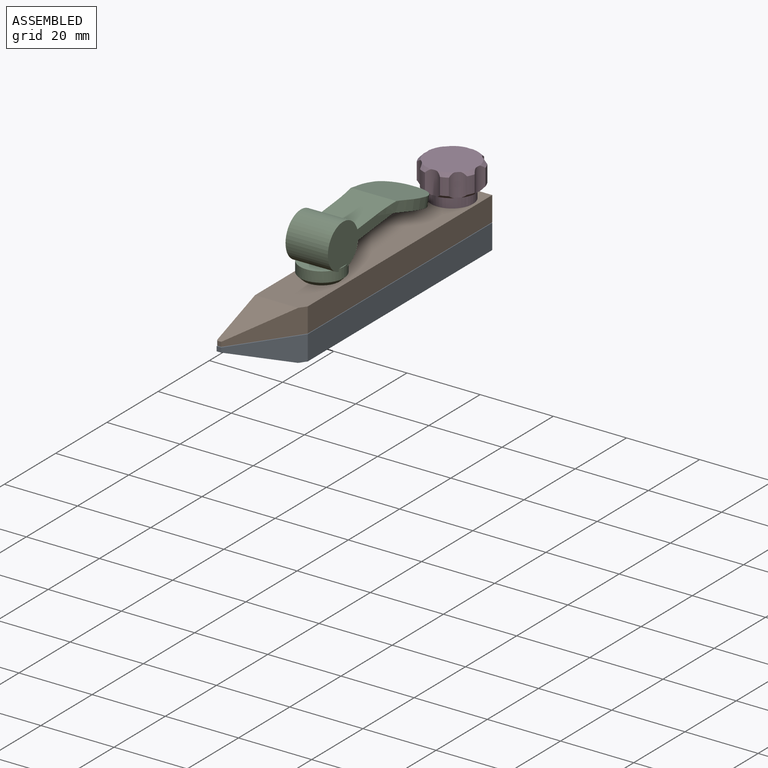
[diagram: assembled view]
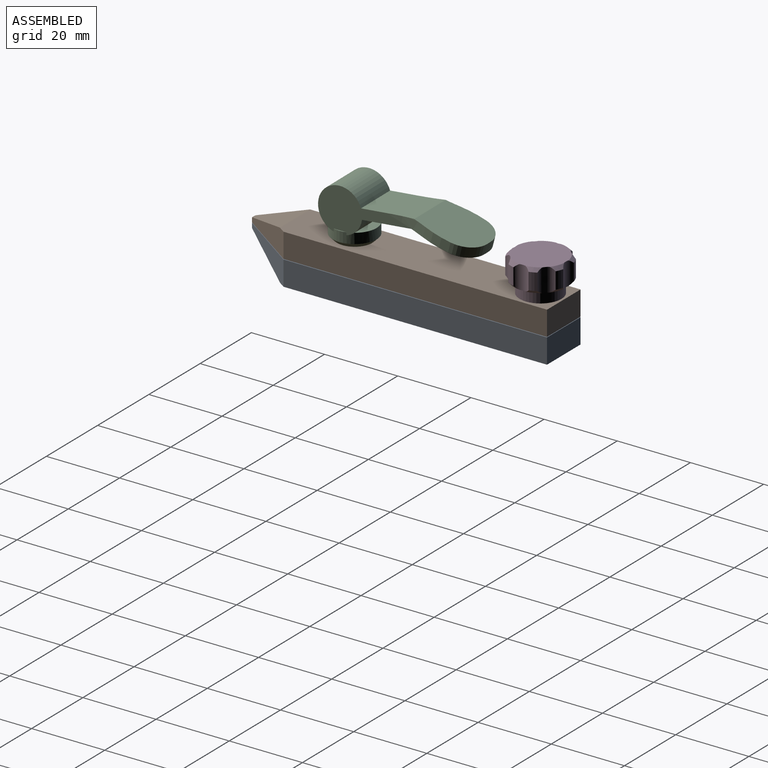
[diagram: assembled view, second angle]
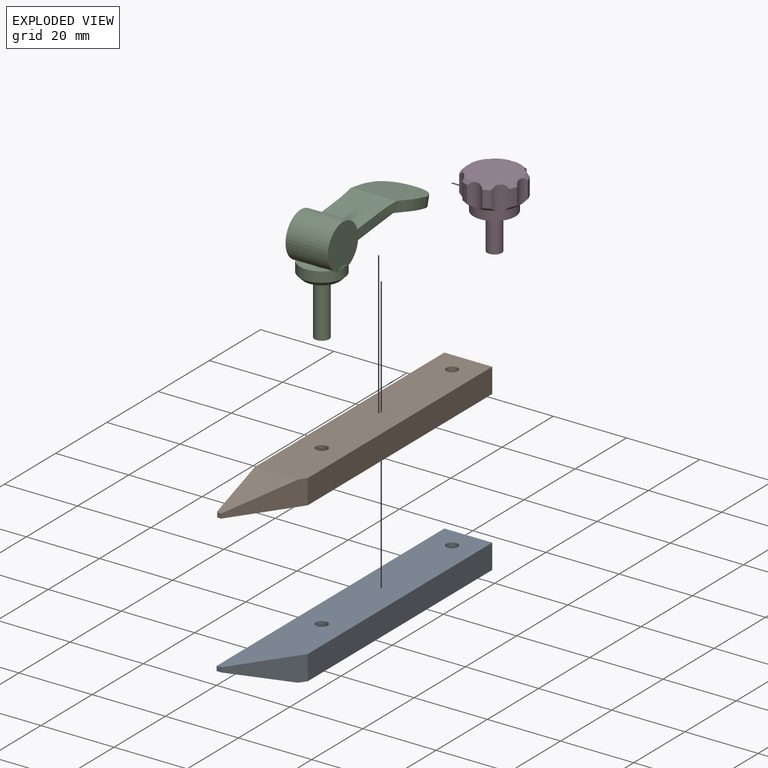
[diagram: exploded view]
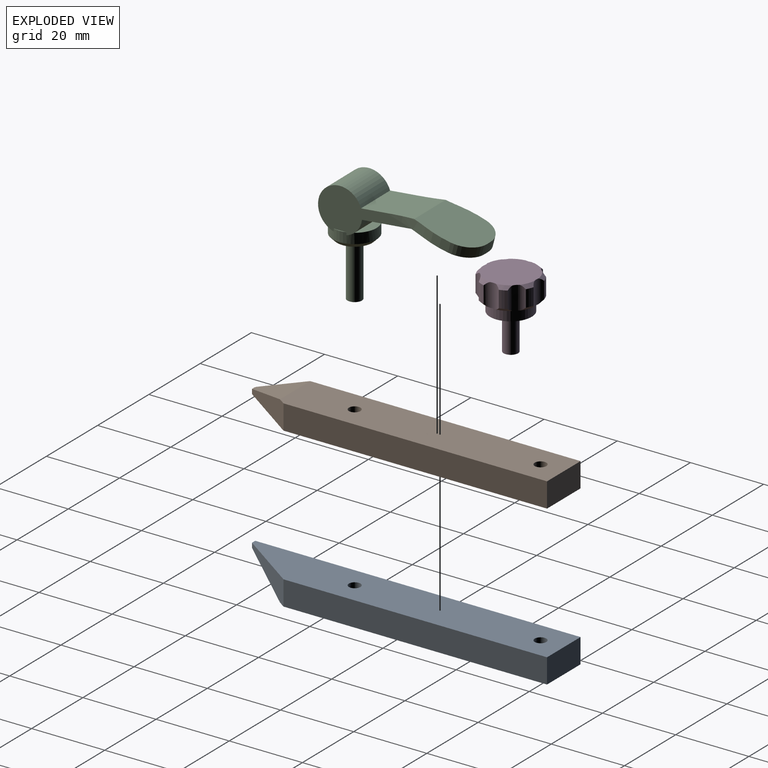
[diagram: exploded view, second angle]
ASSEMBLY  parts=4 mates=7
PART A: 10 faces, bbox 13.1x88.9x6.7 mm
  f0: plane 1.27x1.27mm, normal (0,-1,0), area 1.6mm2, adj f1,f3,f4,f9
  f1: plane 88.9x6.73mm, normal (-1,0,0), area 557.4mm2, adj f0,f2,f4,f6,f9
  f2: plane 73.9x13.09mm, normal (0,0,-1), area 950.5mm2, adj f1,f3,f5,f6,f7,f8,f9
  f3: plane 16.89x11.82mm, normal (0.82,-0.57,0), area 88.7mm2, adj f0,f2,f4,f5,f9
  f4: plane 88.9x13.09mm, normal (0,0,1), area 1048.4mm2, adj f0,f1,f3,f5,f6,f7,f8
  f5: plane 72.01x6.73mm, normal (1,0,0), area 484.7mm2, adj f2,f3,f4,f6
  f6: plane 13.09x6.73mm, normal (0,1,0), area 88.1mm2, adj f1,f2,f4,f5
  f7: cylinder r=1.59mm len=6.73mm, axis (0,0,1), area 67.1mm2, adj f2,f4
  f8: cylinder r=1.59mm len=6.73mm, axis (0,0,1), area 67.1mm2, adj f2,f4
  f9: plane 15x11.78mm, normal (0,-0.34,-0.94), area 104.2mm2, adj f0,f1,f2,f3
PART B: 11 faces, bbox 13.1x88.9x6.7 mm
  f0: plane 73.9x13.09mm, normal (0,0,1), area 950.5mm2, adj f1,f2,f5,f6,f7,f8,f9
  f1: plane 88.65x6.73mm, normal (-1,0,0), area 557.1mm2, adj f0,f4,f6,f9,f10
  f2: plane 16.89x11.82mm, normal (0.82,-0.57,0), area 88.7mm2, adj f0,f3,f4,f5,f9
  f3: plane 1.27x1.02mm, normal (0,-1,0), area 1.3mm2, adj f2,f4,f9,f10
  f4: plane 88.9x13.09mm, normal (0,0,-1), area 1048.3mm2, adj f1,f2,f3,f5,f6,f7,f8,f10
  f5: plane 72.01x6.73mm, normal (1,0,0), area 484.7mm2, adj f0,f2,f4,f6
  f6: plane 13.09x6.73mm, normal (0,1,0), area 88.1mm2, adj f0,f1,f4,f5
  f7: cylinder r=1.59mm len=6.73mm, axis (0,0,1), area 67.1mm2, adj f0,f4
  f8: cylinder r=1.59mm len=6.73mm, axis (0,0,1), area 67.1mm2, adj f0,f4
  f9: plane 15x11.78mm, normal (0,-0.34,0.94), area 104.1mm2, adj f0,f1,f2,f3,f10
  f10: plane 1.36x0.25mm, normal (-0.71,-0.71,0), area 0.5mm2, adj f1,f3,f4,f9
PART C: 24 faces, bbox 14.4x42.4x30 mm
  f0: plane 10x2.68mm, normal (0,0,1), area 18.9mm2, adj f3,f10
  f1: plane 10x2.68mm, normal (0,0,1), area 18.9mm2, adj f3,f9
  f2: plane 3.43x0.25mm, normal (0,0,1), area 0.6mm2, adj f3,f12
  f3: cylinder r=6mm len=12mm, axis (0,0,-1), area 103mm2, adj f0,f1,f2,f4,f8,f9,f10,f11
  f4: plane 3.43x0.25mm, normal (0,0,1), area 0.6mm2, adj f3,f11
  f5: plane 3.97x3.97mm, normal (0,0,-1), area 12.4mm2, adj f6
  f6: cylinder r=1.98mm len=15mm, axis (0,0,-1), area 187mm2, adj f5,f7
  f7: plane 9.62x9.62mm, normal (0,0,-1), area 60.3mm2, adj f6,f8
  f8: cone r=6mm half-angle=45deg, axis (0,0,1), area 57.2mm2, adj f3,f7
  f9: cylinder r=6mm len=11.5mm, axis (-1,0,0), area 59.7mm2, adj f1,f3,f11,f12,f13
  f10: cylinder r=6mm len=11.75mm, axis (-1,0,0), area 263.1mm2, adj f0,f3,f11,f12,f17
  f11: plane 26.22x11.75mm, normal (1,0,0), area 139.2mm2, adj f3,f4,f9,f10,f13,f14,f17,f23
  f12: plane 26.22x11.75mm, normal (-1,0,0), area 139.2mm2, adj f2,f3,f9,f10,f13,f14,f17,f22
  f13: plane 14.28x11.5mm, normal (0,0.1,-1), area 164.9mm2, adj f9,f11,f12,f14
  f14: plane 22.18x14.4mm, normal (0,-0.25,-0.97), area 207.8mm2, adj f11,f12,f13,f15,f18,f19,f20,f21
  f15: plane 2.69x1.5mm, normal (0,0.97,-0.25), area 4.2mm2, adj f14,f16,f20,f21
  f16: plane 15.96x14.4mm, normal (0,0.25,0.97), area 211.7mm2, adj f15,f17,f18,f19,f20,f21,f22,f23
  f17: plane 14.77x12.32mm, normal (0,-0.1,1), area 172.4mm2, adj f10,f11,f12,f16,f22,f23
  f18: cylinder r=24.13mm len=7.75mm, axis (0,0.25,0.97), area 20.3mm2, adj f14,f16,f20,f22
  f19: cylinder r=24.13mm len=7.75mm, axis (0,0.25,0.97), area 20.3mm2, adj f14,f16,f21,f23
  f20: cylinder r=6.35mm len=6.31mm, axis (0,0.25,0.97), area 25.8mm2, adj f14,f15,f16,f18
  f21: cylinder r=6.35mm len=6.31mm, axis (0,0.25,0.97), area 25.8mm2, adj f14,f15,f16,f19
  f22: cylinder r=50.8mm len=10.32mm, axis (0,0.25,0.97), area 20.3mm2, adj f12,f14,f16,f17,f18
  f23: cylinder r=50.8mm len=10.32mm, axis (0,0.25,0.97), area 20.3mm2, adj f11,f14,f16,f17,f19
PART D: 38 faces, bbox 15.8x15.8x19.5 mm
  f0: cone r=7.05mm half-angle=45deg, axis (0,0,1), area 3.5mm2, adj f3,f6,f7,f33
  f1: cone r=7.94mm half-angle=45deg, axis (0,0,-1), area 3.5mm2, adj f2,f3,f28,f37
  f2: cylinder r=7.94mm len=4.57mm, axis (0,0,-1), area 9.4mm2, adj f1,f3,f35,f37
  f3: cylinder r=3.17mm len=6.35mm, axis (0,0,1), area 26.3mm2, adj f0,f1,f2,f5,f6,f28,f33,f35
  f4: cone r=7.05mm half-angle=45deg, axis (0,0,1), area 3.5mm2, adj f7,f10,f11,f33
  f5: cone r=7.94mm half-angle=45deg, axis (0,0,-1), area 3.5mm2, adj f3,f6,f7,f28
  f6: cylinder r=7.94mm len=4.57mm, axis (0,0,-1), area 9.4mm2, adj f0,f3,f5,f7
  f7: cylinder r=3.17mm len=6.35mm, axis (0,0,1), area 26.3mm2, adj f0,f4,f5,f6,f9,f10,f28,f33
  f8: cone r=7.05mm half-angle=45deg, axis (0,0,1), area 3.5mm2, adj f11,f14,f15,f33
  f9: cone r=7.94mm half-angle=45deg, axis (0,0,-1), area 3.5mm2, adj f7,f10,f11,f28
  f10: cylinder r=7.94mm len=4.57mm, axis (0,0,-1), area 9.4mm2, adj f4,f7,f9,f11
  f11: cylinder r=3.17mm len=6.35mm, axis (0,0,1), area 26.3mm2, adj f4,f8,f9,f10,f13,f14,f28,f33
  f12: cone r=7.05mm half-angle=45deg, axis (0,0,1), area 3.5mm2, adj f15,f18,f19,f33
  f13: cone r=7.94mm half-angle=45deg, axis (0,0,-1), area 3.5mm2, adj f11,f14,f15,f28
  f14: cylinder r=7.94mm len=4.57mm, axis (0,0,-1), area 9.4mm2, adj f8,f11,f13,f15
  f15: cylinder r=3.17mm len=6.35mm, axis (0,0,1), area 26.3mm2, adj f8,f12,f13,f14,f17,f18,f28,f33
  f16: cone r=7.05mm half-angle=45deg, axis (0,0,1), area 3.5mm2, adj f19,f22,f23,f33
  f17: cone r=7.94mm half-angle=45deg, axis (0,0,-1), area 3.5mm2, adj f15,f18,f19,f28
  f18: cylinder r=7.94mm len=4.57mm, axis (0,0,-1), area 9.4mm2, adj f12,f15,f17,f19
  f19: cylinder r=3.17mm len=6.35mm, axis (0,0,1), area 26.3mm2, adj f12,f16,f17,f18,f21,f22,f28,f33
  f20: cone r=7.05mm half-angle=45deg, axis (0,0,1), area 3.5mm2, adj f23,f26,f27,f33
  f21: cone r=7.94mm half-angle=45deg, axis (0,0,-1), area 3.5mm2, adj f19,f22,f23,f28
  f22: cylinder r=7.94mm len=4.57mm, axis (0,0,-1), area 9.4mm2, adj f16,f19,f21,f23
  f23: cylinder r=3.17mm len=6.35mm, axis (0,0,1), area 26.3mm2, adj f16,f20,f21,f22,f25,f26,f28,f33
  f24: cone r=7.05mm half-angle=45deg, axis (0,0,1), area 3.5mm2, adj f27,f33,f34,f37
  f25: cone r=7.94mm half-angle=45deg, axis (0,0,-1), area 3.5mm2, adj f23,f26,f27,f28
  f26: cylinder r=7.94mm len=4.57mm, axis (0,0,-1), area 9.4mm2, adj f20,f23,f25,f27
  f27: cylinder r=3.17mm len=6.35mm, axis (0,0,1), area 26.3mm2, adj f20,f24,f25,f26,f28,f33,f34,f36
  f28: plane 14.01x14.01mm, normal (0,0,1), area 154.8mm2, adj f1,f3,f5,f7,f9,f11,f13,f15
  f29: plane 3.96x3.96mm, normal (0,0,-1), area 12.3mm2, adj f30
  f30: cylinder r=1.98mm len=10mm, axis (0,0,-1), area 124.5mm2, adj f29,f31
  f31: plane 11.43x11.43mm, normal (0,0,-1), area 90.3mm2, adj f30,f32
  f32: cylinder r=5.71mm len=11.43mm, axis (0,0,-1), area 114mm2, adj f31,f33
  f33: plane 14.01x14.01mm, normal (0,0,-1), area 52.2mm2, adj f0,f3,f4,f7,f8,f11,f12,f15
  f34: cylinder r=7.94mm len=4.57mm, axis (0,0,-1), area 9.4mm2, adj f24,f27,f36,f37
  f35: cone r=7.05mm half-angle=45deg, axis (0,0,1), area 3.5mm2, adj f2,f3,f33,f37
  f36: cone r=7.94mm half-angle=45deg, axis (0,0,-1), area 3.5mm2, adj f27,f28,f34,f37
  f37: cylinder r=3.17mm len=6.35mm, axis (0,0,1), area 26.3mm2, adj f1,f2,f24,f28,f33,f34,f35,f36
PLACE A t=(-29.27,-7.86,0.18)mm
PLACE B t=(-29.27,-7.86,7.03)mm fixed
PLACE C rot(axis=(0,0,1),0.5deg) t=(-29.27,-14.21,10.4)mm
PLACE D t=(-29.27,36.59,10.4)mm
MATE cylindrical C.f3 <-> A.f8  axis (0,0,-1) through (-29.27,-14.21,-4.6)mm
MATE parallel B.f5 <-> A.f5  axis (1,0,0) through (-22.72,6.93,7.03)mm
MATE planar C.f3 <-> B.f0  axis (0,0,-1) through (-29.27,-14.21,10.4)mm
MATE parallel A.f4 <-> B.f4  axis (0,0,1) through (-29.52,1.99,3.54)mm
MATE cylindrical D.f0 <-> B.f7  axis (0,0,-1) through (-29.27,36.59,0.4)mm
MATE cylindrical C.f3 <-> B.f8  axis (0,0,-1) through (-29.27,-14.21,-4.6)mm
MATE planar B.f8 <-> D.f0  axis (0,0,1) through (-29.27,-14.21,10.4)mm
